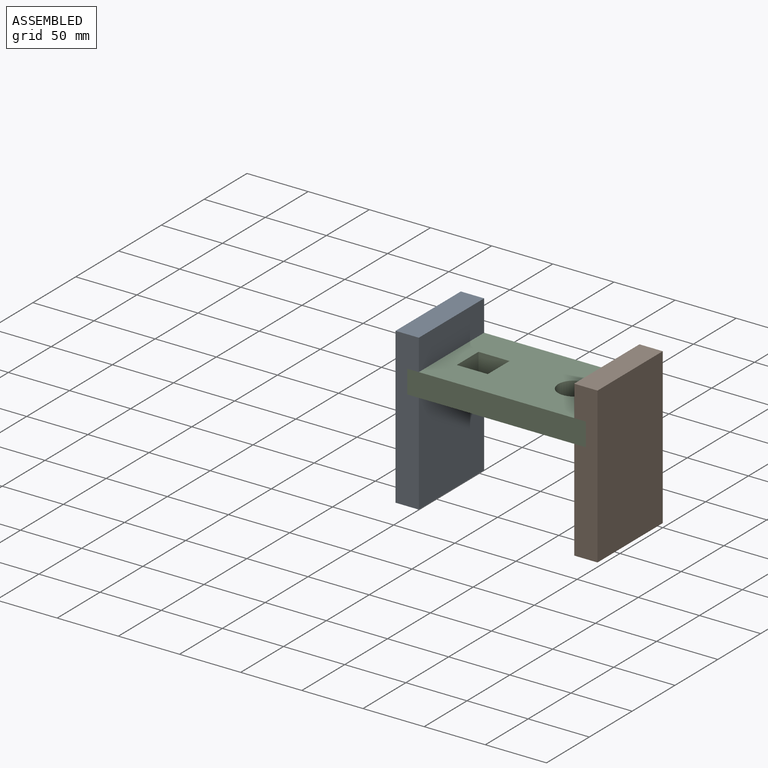
[diagram: assembled view]
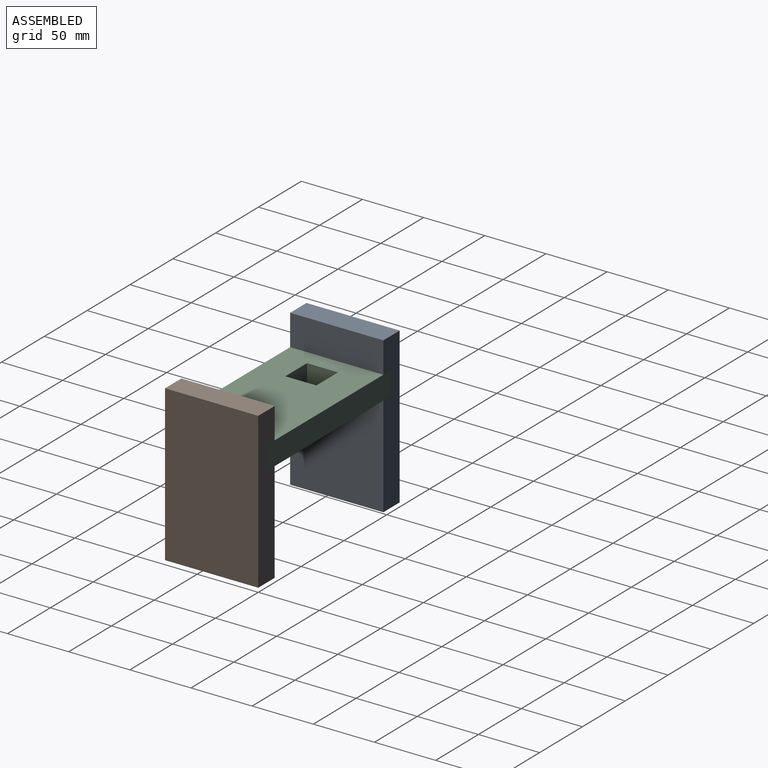
[diagram: assembled view, second angle]
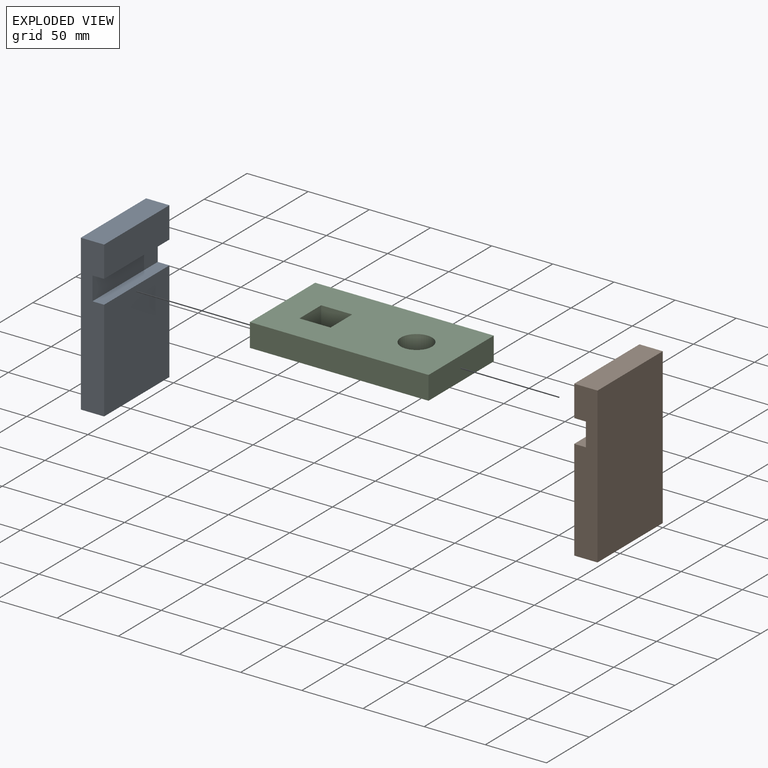
[diagram: exploded view]
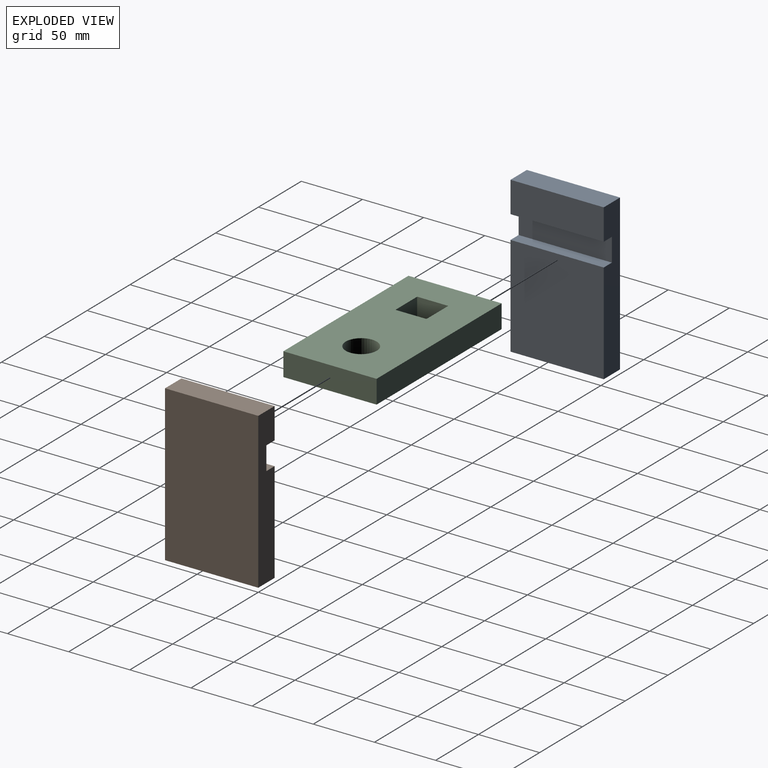
[diagram: exploded view, second angle]
ASSEMBLY  parts=3 mates=2
PART A: 10 faces, bbox 19.1x76.2x127 mm
  f0: plane 82.55x76.2mm, normal (-1,0,0), area 6290.3mm2, adj f1,f7,f8,f9
  f1: plane 76.2x19.05mm, normal (0,0,-1), area 1451.6mm2, adj f0,f2,f8,f9
  f2: plane 127x76.2mm, normal (1,0,0), area 9677.4mm2, adj f1,f3,f8,f9
  f3: plane 76.2x19.05mm, normal (0,0,1), area 1451.6mm2, adj f2,f4,f8,f9
  f4: plane 76.2x25.4mm, normal (-1,0,0), area 1935.5mm2, adj f3,f5,f8,f9
  f5: plane 76.2x9.53mm, normal (0,0,-1), area 725.8mm2, adj f4,f6,f8,f9
  f6: plane 76.2x19.05mm, normal (-1,0,0), area 1451.6mm2, adj f5,f7,f8,f9
  f7: plane 76.2x9.53mm, normal (0,0,1), area 725.8mm2, adj f0,f6,f8,f9
  f8: plane 127x19.05mm, normal (0,-1,0), area 2237.9mm2, adj f0,f1,f2,f3,f4,f5,f6,f7
  f9: plane 127x19.05mm, normal (0,1,0), area 2237.9mm2, adj f0,f1,f2,f3,f4,f5,f6,f7
PART B: same geometry as A
PART C: 11 faces, bbox 146.1x19.1x76.2 mm
  f0: plane 76.2x19.05mm, normal (1,0,0), area 1451.6mm2, adj f1,f8,f9,f10
  f1: plane 146.05x19.05mm, normal (0,0,1), area 2782.3mm2, adj f0,f2,f9,f10
  f2: plane 76.2x19.05mm, normal (-1,0,0), area 1451.6mm2, adj f1,f8,f9,f10
  f3: plane 25.4x19.05mm, normal (0,0,1), area 483.9mm2, adj f4,f6,f9,f10
  f4: plane 25.4x19.05mm, normal (1,0,0), area 483.9mm2, adj f3,f5,f9,f10
  f5: plane 25.4x19.05mm, normal (0,0,-1), area 483.9mm2, adj f4,f6,f9,f10
  f6: plane 25.4x19.05mm, normal (-1,0,0), area 483.9mm2, adj f3,f5,f9,f10
  f7: cylinder r=12.7mm len=25.4mm, axis (0,1,0), area 1520.1mm2, adj f9,f10
  f8: plane 146.05x19.05mm, normal (0,0,-1), area 2782.3mm2, adj f0,f2,f9,f10
  f9: plane 146.05x76.2mm, normal (0,-1,0), area 9977.1mm2, adj f0,f1,f2,f3,f4,f5,f6,f7
  f10: plane 146.05x76.2mm, normal (0,1,0), area 9977.1mm2, adj f0,f1,f2,f3,f4,f5,f6,f7
PLACE A rot(axis=(0,0,1),180deg) t=(-165.1,-76.2,0)mm
PLACE B at identity
PLACE C rot(axis=(1,0,0),90deg) t=(-9.52,0,101.6)mm
MATE planar C.f0 <-> B.f6  axis (1,0,0) through (-9.52,-38.1,92.07)mm
MATE planar A.f6 <-> C.f2  axis (1,0,0) through (-155.57,-38.1,92.08)mm
